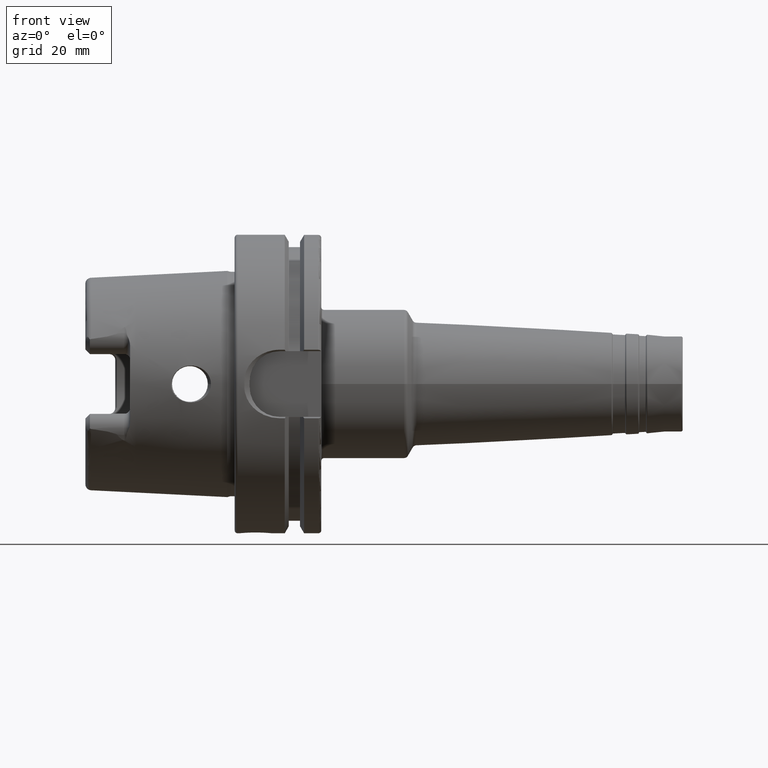
[diagram: clean part render]
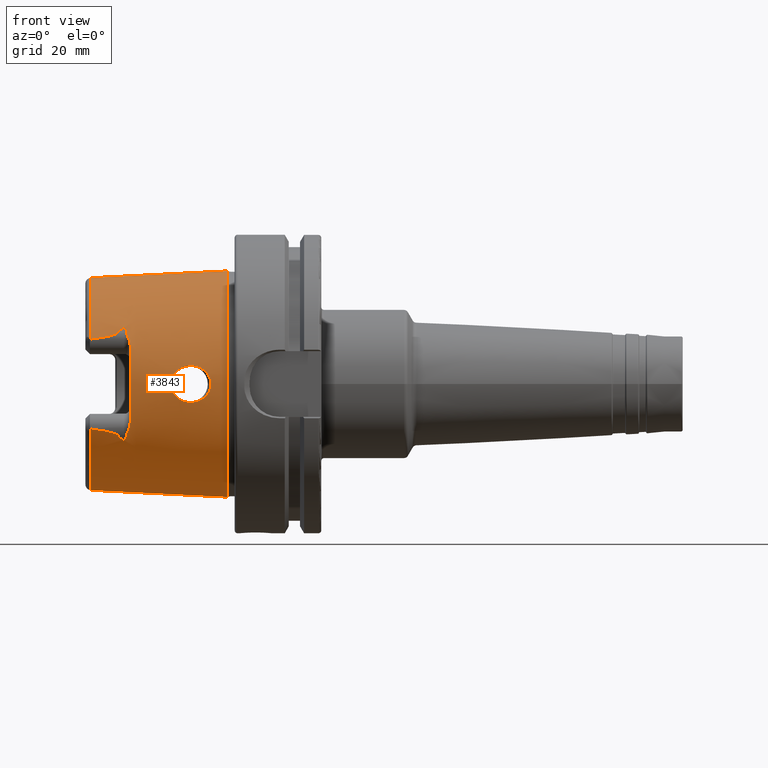
[diagram: same view with one face highlighted and labeled with its STEP entity id]
A machine part, front view. The second image highlights one B-rep face of the part: STEP entity #3843.
In plain terms, the highlighted conical surface has half-angle 2.868 deg.
Its self-contained STEP definition (entity closure, byte-faithful):
#563=CARTESIAN_POINT('',(-1.893703631359E0,0.E0,0.E0));
#564=DIRECTION('',(-1.E0,0.E0,0.E0));
#565=DIRECTION('',(0.E0,0.E0,-1.E0));
#566=AXIS2_PLACEMENT_3D('',#563,#564,#565);
#568=CARTESIAN_POINT('',(-1.893703631359E0,-1.269565425091E0,
-5.929989467927E-1));
#569=CARTESIAN_POINT('',(-1.880842745225E0,-1.269507281475E0,
-5.946459169201E-1));
#570=CARTESIAN_POINT('',(-1.856152808006E0,-1.269350028431E0,
-5.978937214253E-1));
#571=CARTESIAN_POINT('',(-1.822333598122E0,-1.269005478724E0,
-6.025849445480E-1));
#572=CARTESIAN_POINT('',(-1.791357704271E0,-1.268562422246E0,
-6.071203566744E-1));
#573=CARTESIAN_POINT('',(-1.763041748018E0,-1.268030942239E0,
-6.115023616335E-1));
#574=CARTESIAN_POINT('',(-1.737128254918E0,-1.267417978007E0,
-6.157482500839E-1));
#575=CARTESIAN_POINT('',(-1.713636981194E0,-1.266737262270E0,
-6.198295919257E-1));
#576=CARTESIAN_POINT('',(-1.691917761567E0,-1.265981073834E0,
-6.238382578979E-1));
#577=CARTESIAN_POINT('',(-1.671691908873E0,-1.265141219621E0,
-6.278224821604E-1));
#578=CARTESIAN_POINT('',(-1.653396345127E0,-1.264242140980E0,
-6.316841743662E-1));
#579=CARTESIAN_POINT('',(-1.636815111755E0,-1.263284552190E0,
-6.354476568252E-1));
#580=CARTESIAN_POINT('',(-1.621729767126E0,-1.262266064666E0,
-6.391433595558E-1));
#581=CARTESIAN_POINT('',(-1.607391234513E0,-1.261126041844E0,
-6.429730893223E-1));
#582=CARTESIAN_POINT('',(-1.594610103997E0,-1.259919566836E0,
-6.467373553427E-1));
#583=CARTESIAN_POINT('',(-1.583066782321E0,-1.258618337019E0,
-6.505266087614E-1));
#584=CARTESIAN_POINT('',(-1.572785980931E0,-1.257217673715E0,
-6.543462750870E-1));
#585=CARTESIAN_POINT('',(-1.563244139271E0,-1.255600343644E0,
-6.584751191454E-1));
#586=CARTESIAN_POINT('',(-1.554898956450E0,-1.253746824072E0,
-6.628934691931E-1));
#587=CARTESIAN_POINT('',(-1.547980131168E0,-1.251545910438E0,
-6.677777568287E-1));
#588=CARTESIAN_POINT('',(-1.544771429549E0,-1.249771031909E0,
-6.714292805776E-1));
#589=CARTESIAN_POINT('',(-1.543717736798E0,-1.248744560553E0,
-6.734438440444E-1));
#591=CARTESIAN_POINT('',(-1.543717736798E0,-1.248744560553E0,
-6.734438440444E-1));
#592=CARTESIAN_POINT('',(-1.540223605096E0,-1.245340697233E0,
-6.801243019542E-1));
#593=CARTESIAN_POINT('',(-1.531071187287E0,-1.238707383205E0,
-6.931429137533E-1));
#594=CARTESIAN_POINT('',(-1.511289858449E0,-1.229049250987E0,
-7.120980655068E-1));
#595=CARTESIAN_POINT('',(-1.486558801566E0,-1.219858638449E0,
-7.301356582255E-1));
#596=CARTESIAN_POINT('',(-1.467131752005E0,-1.213967895267E0,
-7.416968926800E-1));
#597=CARTESIAN_POINT('',(-1.456692913386E0,-1.211058486285E0,
-7.474069293135E-1));
#599=CARTESIAN_POINT('',(-1.456692913386E0,-1.211058486285E0,
7.474069293135E-1));
#600=CARTESIAN_POINT('',(-1.467133766522E0,-1.213968456733E0,
7.416957907411E-1));
#601=CARTESIAN_POINT('',(-1.486562803422E0,-1.219859894061E0,
7.301331939492E-1));
#602=CARTESIAN_POINT('',(-1.511292211461E0,-1.229050500295E0,
7.120956136030E-1));
#603=CARTESIAN_POINT('',(-1.531065870640E0,-1.238704557315E0,
6.931484598735E-1));
#604=CARTESIAN_POINT('',(-1.540222098315E0,-1.245339229378E0,
6.801271827818E-1));
#605=CARTESIAN_POINT('',(-1.543717736798E0,-1.248744560553E0,
6.734438440444E-1));
#607=CARTESIAN_POINT('',(-1.893703631359E0,-1.269565425091E0,
5.929989467927E-1));
#608=CARTESIAN_POINT('',(-1.880842745225E0,-1.269507281475E0,
5.946459169201E-1));
#609=CARTESIAN_POINT('',(-1.856152808006E0,-1.269350028431E0,
5.978937214253E-1));
#610=CARTESIAN_POINT('',(-1.822333598122E0,-1.269005478724E0,
6.025849445480E-1));
#611=CARTESIAN_POINT('',(-1.791357704271E0,-1.268562422246E0,
6.071203566744E-1));
#612=CARTESIAN_POINT('',(-1.763041748018E0,-1.268030942239E0,
6.115023616335E-1));
#613=CARTESIAN_POINT('',(-1.737128254918E0,-1.267417978007E0,
6.157482500839E-1));
#614=CARTESIAN_POINT('',(-1.713636981194E0,-1.266737262270E0,
6.198295919257E-1));
#615=CARTESIAN_POINT('',(-1.691917761567E0,-1.265981073834E0,
6.238382578979E-1));
#616=CARTESIAN_POINT('',(-1.671691908873E0,-1.265141219621E0,
6.278224821604E-1));
#617=CARTESIAN_POINT('',(-1.653396345127E0,-1.264242140980E0,
6.316841743661E-1));
#618=CARTESIAN_POINT('',(-1.636815111755E0,-1.263284552190E0,
6.354476568252E-1));
#619=CARTESIAN_POINT('',(-1.621729767126E0,-1.262266064666E0,
6.391433595558E-1));
#620=CARTESIAN_POINT('',(-1.607391234513E0,-1.261126041844E0,
6.429730893223E-1));
#621=CARTESIAN_POINT('',(-1.594610103997E0,-1.259919566836E0,
6.467373553427E-1));
#622=CARTESIAN_POINT('',(-1.583066782321E0,-1.258618337019E0,
6.505266087614E-1));
#623=CARTESIAN_POINT('',(-1.572785980931E0,-1.257217673715E0,
6.543462750870E-1));
#624=CARTESIAN_POINT('',(-1.563244139271E0,-1.255600343644E0,
6.584751191454E-1));
#625=CARTESIAN_POINT('',(-1.554898956450E0,-1.253746824072E0,
6.628934691931E-1));
#626=CARTESIAN_POINT('',(-1.547980131168E0,-1.251545910438E0,
6.677777568287E-1));
#627=CARTESIAN_POINT('',(-1.544771429549E0,-1.249771031909E0,
6.714292805777E-1));
#628=CARTESIAN_POINT('',(-1.543717736798E0,-1.248744560553E0,
6.734438440444E-1));
#630=CARTESIAN_POINT('',(-1.893703631359E0,0.E0,0.E0));
#631=DIRECTION('',(-1.E0,0.E0,0.E0));
#632=DIRECTION('',(0.E0,-9.060367502718E-1,4.231990160161E-1));
#633=AXIS2_PLACEMENT_3D('',#630,#631,#632);
#635=DIRECTION('',(-9.987493463681E-1,-1.021020391236E-10,-4.999743122625E-2));
#636=VECTOR('',#635,1.797523029311E0);
#637=CARTESIAN_POINT('',(-9.842868075308E-2,1.833079246693E-10,
1.491101036824E0));
#638=LINE('',#637,#636);
#639=CARTESIAN_POINT('',(-9.842868075308E-2,-1.833076623798E-10,
-1.491101036824E0));
#640=CARTESIAN_POINT('',(-9.842867891766E-2,-7.435984661004E-2,
-1.491101036916E0));
#641=CARTESIAN_POINT('',(-9.906543530853E-2,-2.230740001245E-1,
-1.480026445825E0));
#642=CARTESIAN_POINT('',(-9.880950776748E-2,-4.411665630535E-1,
-1.430220253021E0));
#643=CARTESIAN_POINT('',(-9.887808334538E-2,-6.494030020027E-1,
-1.348500930628E0));
#644=CARTESIAN_POINT('',(-9.885970857483E-2,-8.431331716230E-1,
-1.236648778696E0));
#645=CARTESIAN_POINT('',(-9.886463207913E-2,-1.018029052116E0,
-1.097174495586E0));
#646=CARTESIAN_POINT('',(-9.886331283247E-2,-1.170183869109E0,
-9.331904621137E-1));
#647=CARTESIAN_POINT('',(-9.886366631483E-2,-1.296198706489E0,
-7.483606790954E-1));
#648=CARTESIAN_POINT('',(-9.886357163205E-2,-1.393258608502E0,
-5.468137056757E-1));
#649=CARTESIAN_POINT('',(-9.886359688079E-2,-1.459195414972E0,
-3.330518312804E-1));
#650=CARTESIAN_POINT('',(-9.886359056861E-2,-1.492536207401E0,
-1.118501257205E-1));
#651=CARTESIAN_POINT('',(-9.886359056861E-2,-1.492536207412E0,
1.118501255728E-1));
#652=CARTESIAN_POINT('',(-9.886359688079E-2,-1.459195415005E0,
3.330518311366E-1));
#653=CARTESIAN_POINT('',(-9.886357163205E-2,-1.393258608556E0,
5.468137055372E-1));
#654=CARTESIAN_POINT('',(-9.886366631484E-2,-1.296198706564E0,
7.483606789658E-1));
#655=CARTESIAN_POINT('',(-9.886331283240E-2,-1.170183869202E0,
9.331904619981E-1));
#656=CARTESIAN_POINT('',(-9.886463207941E-2,-1.018029052218E0,
1.097174495490E0));
#657=CARTESIAN_POINT('',(-9.885970857380E-2,-8.431331717537E-1,
1.236648778606E0));
#658=CARTESIAN_POINT('',(-9.887808334921E-2,-6.494030021276E-1,
1.348500930572E0));
#659=CARTESIAN_POINT('',(-9.880950775318E-2,-4.411665632053E-1,
1.430220252961E0));
#660=CARTESIAN_POINT('',(-9.906543536189E-2,-2.230740003706E-1,
1.480026445818E0));
#661=CARTESIAN_POINT('',(-9.842867880268E-2,-7.435984627187E-2,
1.491101036922E0));
#662=CARTESIAN_POINT('',(-9.842868075308E-2,1.833079246693E-10,
1.491101036824E0));
#664=DIRECTION('',(-9.987493463681E-1,1.021030404979E-10,4.999743122625E-2));
#665=VECTOR('',#664,1.797523029311E0);
#666=CARTESIAN_POINT('',(-9.842868075308E-2,-1.833076623798E-10,
-1.491101036824E0));
#667=LINE('',#666,#665);
#668=CARTESIAN_POINT('',(-3.128946030769E-1,-1.480426251414E0,0.E0));
#669=CARTESIAN_POINT('',(-3.128946030769E-1,-1.480426251414E0,
-1.793355269297E-2));
#670=CARTESIAN_POINT('',(-3.171521727647E-1,-1.479567657654E0,
-5.228421557719E-2));
#671=CARTESIAN_POINT('',(-3.343803252517E-1,-1.476207557354E0,
-9.977767551936E-2));
#672=CARTESIAN_POINT('',(-3.603203566783E-1,-1.471450549823E0,
-1.413401699306E-1));
#673=CARTESIAN_POINT('',(-3.945084407381E-1,-1.465741866156E0,
-1.776228749722E-1));
#674=CARTESIAN_POINT('',(-4.358227646297E-1,-1.459706203287E0,
-2.072529867113E-1));
#675=CARTESIAN_POINT('',(-4.831466632845E-1,-1.454003661986E0,
-2.290298674016E-1));
#676=CARTESIAN_POINT('',(-5.320900109301E-1,-1.449485136456E0,
-2.414117426801E-1));
#677=CARTESIAN_POINT('',(-5.820499904265E-1,-1.446320063876E0,
-2.450975261997E-1));
#678=CARTESIAN_POINT('',(-6.317032386393E-1,-1.444647052136E0,
-2.400922505621E-1));
#679=CARTESIAN_POINT('',(-6.801464475551E-1,-1.444438048215E0,
-2.263329803044E-1));
#680=CARTESIAN_POINT('',(-7.255118082618E-1,-1.445527533900E0,
-2.038769381679E-1));
#681=CARTESIAN_POINT('',(-7.655218420232E-1,-1.447517935838E0,
-1.735118792315E-1));
#682=CARTESIAN_POINT('',(-7.981472907721E-1,-1.449846751428E0,
-1.368585160245E-1));
#683=CARTESIAN_POINT('',(-8.225663574576E-1,-1.451998367136E0,
-9.519400604822E-2));
#684=CARTESIAN_POINT('',(-8.380630020108E-1,-1.453545646359E0,
-4.908882972230E-2));
#685=CARTESIAN_POINT('',(-8.417144799839E-1,-1.453932972270E0,
-1.671057230190E-2));
#686=CARTESIAN_POINT('',(-8.417144799839E-1,-1.453932972270E0,0.E0));
#688=CARTESIAN_POINT('',(-8.417144799839E-1,-1.453932972270E0,0.E0));
#689=CARTESIAN_POINT('',(-8.417144799839E-1,-1.453932972270E0,
1.678651392874E-2));
#690=CARTESIAN_POINT('',(-8.380301592165E-1,-1.453542138065E0,
4.929051042080E-2));
#691=CARTESIAN_POINT('',(-8.224292024418E-1,-1.451985055815E0,
9.551334382738E-2));
#692=CARTESIAN_POINT('',(-7.978966975531E-1,-1.449826430876E0,
1.372034065275E-1));
#693=CARTESIAN_POINT('',(-7.652254080693E-1,-1.447499846288E0,
1.737817904060E-1));
#694=CARTESIAN_POINT('',(-7.251857136219E-1,-1.445515491719E0,
2.040764502318E-1));
#695=CARTESIAN_POINT('',(-6.797946022481E-1,-1.444434031646E0,
2.264709929686E-1));
#696=CARTESIAN_POINT('',(-6.312563978015E-1,-1.444654924821E0,
2.401805803585E-1));
#697=CARTESIAN_POINT('',(-5.815860811536E-1,-1.446342946534E0,
2.451015411723E-1));
#698=CARTESIAN_POINT('',(-5.316937655645E-1,-1.449517078029E0,
2.413415655311E-1));
#699=CARTESIAN_POINT('',(-4.828661894707E-1,-1.454034377049E0,
2.289254263025E-1));
#700=CARTESIAN_POINT('',(-4.355782183882E-1,-1.459738474895E0,
2.071162265290E-1));
#701=CARTESIAN_POINT('',(-3.941909689315E-1,-1.465791122885E0,
1.773574057007E-1));
#702=CARTESIAN_POINT('',(-3.600115112815E-1,-1.471504941797E0,
1.409459057545E-1));
#703=CARTESIAN_POINT('',(-3.341690471763E-1,-1.476248008108E0,
9.932836915106E-2));
#704=CARTESIAN_POINT('',(-3.170995627949E-1,-1.479578350415E0,
5.198573248221E-2));
#705=CARTESIAN_POINT('',(-3.128946030769E-1,-1.480426251414E0,
1.781732352592E-2));
#706=CARTESIAN_POINT('',(-3.128946030769E-1,-1.480426251414E0,0.E0));
#900=CARTESIAN_POINT('',(-1.456692913386E0,-1.211058486285E0,
7.474069293135E-1));
#901=CARTESIAN_POINT('',(-1.455238337545E0,-1.210653081415E0,
7.482025811710E-1));
#902=CARTESIAN_POINT('',(-1.452352583608E0,-1.210376329549E0,
7.489242788756E-1));
#903=CARTESIAN_POINT('',(-1.448317570632E0,-1.211413243652E0,
7.476324535017E-1));
#904=CARTESIAN_POINT('',(-1.445170009108E0,-1.213207113352E0,
7.450207292978E-1));
#905=CARTESIAN_POINT('',(-1.442634124228E0,-1.215288348757E0,
7.418656008193E-1));
#906=CARTESIAN_POINT('',(-1.440434430390E0,-1.217616469979E0,
7.382519492797E-1));
#907=CARTESIAN_POINT('',(-1.438406805633E0,-1.220251279488E0,
7.340873028443E-1));
#908=CARTESIAN_POINT('',(-1.436489607266E0,-1.223246204226E0,
7.292754335862E-1));
#909=CARTESIAN_POINT('',(-1.434661116555E0,-1.226647677667E0,
7.237224087632E-1));
#910=CARTESIAN_POINT('',(-1.432937515898E0,-1.230459531193E0,
7.173968216570E-1));
#911=CARTESIAN_POINT('',(-1.431341897748E0,-1.234666243581E0,
7.102962956893E-1));
#912=CARTESIAN_POINT('',(-1.429897788995E0,-1.239253628934E0,
7.024120006014E-1));
#913=CARTESIAN_POINT('',(-1.428658939679E0,-1.244070809412E0,
6.939741895930E-1));
#914=CARTESIAN_POINT('',(-1.427642779738E0,-1.249022911115E0,
6.851283329257E-1));
#915=CARTESIAN_POINT('',(-1.427123768653E0,-1.252311570391E0,
6.791362187333E-1));
#916=CARTESIAN_POINT('',(-1.426899874699E0,-1.253960541512E0,
6.761015190875E-1));
#928=CARTESIAN_POINT('',(-1.426899874699E0,-1.253960541512E0,
6.761015190875E-1));
#929=CARTESIAN_POINT('',(-1.426453380585E0,-1.257248955004E0,
6.700496561240E-1));
#930=CARTESIAN_POINT('',(-1.423752320487E0,-1.263956337886E0,
6.576816398833E-1));
#931=CARTESIAN_POINT('',(-1.416255166269E0,-1.274194072720E0,
6.384745689381E-1));
#932=CARTESIAN_POINT('',(-1.406965615960E0,-1.285070483452E0,
6.173928222922E-1));
#933=CARTESIAN_POINT('',(-1.397256580260E0,-1.296437402203E0,
5.943504080234E-1));
#934=CARTESIAN_POINT('',(-1.387976139665E0,-1.308560561086E0,5.684020404E-1));
#935=CARTESIAN_POINT('',(-1.380279496516E0,-1.321909031742E0,
5.377337604566E-1));
#936=CARTESIAN_POINT('',(-1.377952755906E0,-1.330900057113E0,
5.151610185964E-1));
#937=CARTESIAN_POINT('',(-1.377952755906E0,-1.335397259534E0,
5.032269360625E-1));
#953=CARTESIAN_POINT('',(-1.377952755906E0,0.E0,0.E0));
#954=DIRECTION('',(1.E0,0.E0,0.E0));
#955=DIRECTION('',(0.E0,-9.357628524911E-1,3.526299532055E-1));
#956=AXIS2_PLACEMENT_3D('',#953,#954,#955);
#1034=CARTESIAN_POINT('',(-1.377952755906E0,-1.335397259534E0,
-5.032269360625E-1));
#1035=CARTESIAN_POINT('',(-1.377952755906E0,-1.330904109616E0,
-5.151502645977E-1));
#1036=CARTESIAN_POINT('',(-1.380280891988E0,-1.321941884780E0,
-5.376443966210E-1));
#1037=CARTESIAN_POINT('',(-1.387816605720E0,-1.308812658899E0,
-5.678331103960E-1));
#1038=CARTESIAN_POINT('',(-1.396945941854E0,-1.296818318441E0,
-5.935539020596E-1));
#1039=CARTESIAN_POINT('',(-1.406580482562E0,-1.285512279309E0,
-6.165175882242E-1));
#1040=CARTESIAN_POINT('',(-1.415960454685E0,-1.274557485131E0,
-6.377854960501E-1));
#1041=CARTESIAN_POINT('',(-1.423645414950E0,-1.264160517235E0,
-6.573048439630E-1));
#1042=CARTESIAN_POINT('',(-1.426443318473E0,-1.257323062104E0,
-6.699132724208E-1));
#1043=CARTESIAN_POINT('',(-1.426899874699E0,-1.253960541512E0,
-6.761015190875E-1));
#1050=CARTESIAN_POINT('',(-1.426899874699E0,-1.253960541512E0,
-6.761015190875E-1));
#1051=CARTESIAN_POINT('',(-1.427138655064E0,-1.252201932499E0,
-6.793379918671E-1));
#1052=CARTESIAN_POINT('',(-1.427682671949E0,-1.248810127746E0,
-6.855110708649E-1));
#1053=CARTESIAN_POINT('',(-1.428649481666E0,-1.244142714712E0,
-6.938421747514E-1));
#1054=CARTESIAN_POINT('',(-1.429743291445E0,-1.239840679208E0,
-7.013860940269E-1));
#1055=CARTESIAN_POINT('',(-1.430950533304E0,-1.235864591438E0,
-7.082442023707E-1));
#1056=CARTESIAN_POINT('',(-1.432262357456E0,-1.232180229722E0,
-7.145021957001E-1));
#1057=CARTESIAN_POINT('',(-1.433730142960E0,-1.228645381760E0,
-7.204171044621E-1));
#1058=CARTESIAN_POINT('',(-1.435341867678E0,-1.225326515990E0,
-7.258876117009E-1));
#1059=CARTESIAN_POINT('',(-1.437081826486E0,-1.222272805376E0,
-7.308464262800E-1));
#1060=CARTESIAN_POINT('',(-1.438949322676E0,-1.219500807835E0,
-7.352799433103E-1));
#1061=CARTESIAN_POINT('',(-1.440975938847E0,-1.216997025610E0,
-7.392199856867E-1));
#1062=CARTESIAN_POINT('',(-1.443215630343E0,-1.214758996292E0,
-7.426759006674E-1));
#1063=CARTESIAN_POINT('',(-1.445820426895E0,-1.212773249111E0,
-7.456642570957E-1));
#1064=CARTESIAN_POINT('',(-1.449076225649E0,-1.211115432710E0,
-7.480419755746E-1));
#1065=CARTESIAN_POINT('',(-1.453076925427E0,-1.210383235765E0,
-7.488441663023E-1));
#1066=CARTESIAN_POINT('',(-1.455477545098E0,-1.210719750958E0,
-7.480717348249E-1));
#1067=CARTESIAN_POINT('',(-1.456692913386E0,-1.211058486285E0,
-7.474069293135E-1));
#2866=VERTEX_POINT('',#639);
#2867=VERTEX_POINT('',#662);
#2967=CARTESIAN_POINT('',(-1.377952755906E0,-1.335397259534E0,
-5.032269360625E-1));
#2969=VERTEX_POINT('',#2967);
#2970=CARTESIAN_POINT('',(-1.456692913386E0,-1.211058486285E0,
-7.474069293135E-1));
#2971=VERTEX_POINT('',#2970);
#2973=CARTESIAN_POINT('',(-1.377952755906E0,-1.335397259534E0,
5.032269360625E-1));
#2975=VERTEX_POINT('',#2973);
#2980=CARTESIAN_POINT('',(-1.456692913386E0,-1.211058486285E0,
7.474069293135E-1));
#2981=VERTEX_POINT('',#2980);
#2982=VERTEX_POINT('',#591);
#2983=CARTESIAN_POINT('',(-1.543717736798E0,-1.248744560553E0,
6.734438440444E-1));
#2984=VERTEX_POINT('',#2983);
#2985=VERTEX_POINT('',#916);
#2986=VERTEX_POINT('',#1050);
#3035=CARTESIAN_POINT('',(-1.893703631359E0,0.E0,-1.401229502788E0));
#3036=CARTESIAN_POINT('',(-1.893703631359E0,-1.269565425091E0,
-5.929989467927E-1));
#3037=VERTEX_POINT('',#3035);
#3038=VERTEX_POINT('',#3036);
#3041=CARTESIAN_POINT('',(-1.893703631359E0,0.E0,1.401229502788E0));
#3043=VERTEX_POINT('',#3041);
#3045=CARTESIAN_POINT('',(-1.893703631359E0,-1.269565425091E0,
5.929989467927E-1));
#3046=VERTEX_POINT('',#3045);
#3126=CARTESIAN_POINT('',(-3.128946030769E-1,-1.480426251414E0,0.E0));
#3128=VERTEX_POINT('',#3126);
#3130=CARTESIAN_POINT('',(-8.417144799839E-1,-1.453932972270E0,0.E0));
#3132=VERTEX_POINT('',#3130);
#3807=CARTESIAN_POINT('',(-9.960678980185E-1,0.E0,0.E0));
#3808=DIRECTION('',(1.E0,0.E0,0.E0));
#3809=DIRECTION('',(0.E0,0.E0,1.E0));
#3810=AXIS2_PLACEMENT_3D('',#3807,#3808,#3809);
#3811=CONICAL_SURFACE('',#3810,1.446200040189E0,2.868056E0);
#3812=ORIENTED_EDGE('',*,*,#3390,.T.);
#3814=ORIENTED_EDGE('',*,*,#3813,.T.);
#3816=ORIENTED_EDGE('',*,*,#3815,.T.);
#3818=ORIENTED_EDGE('',*,*,#3817,.F.);
#3820=ORIENTED_EDGE('',*,*,#3819,.F.);
#3822=ORIENTED_EDGE('',*,*,#3821,.F.);
#3824=ORIENTED_EDGE('',*,*,#3823,.F.);
#3826=ORIENTED_EDGE('',*,*,#3825,.F.);
#3828=ORIENTED_EDGE('',*,*,#3827,.T.);
#3830=ORIENTED_EDGE('',*,*,#3829,.F.);
#3832=ORIENTED_EDGE('',*,*,#3831,.T.);
#3833=ORIENTED_EDGE('',*,*,#3354,.F.);
#3835=ORIENTED_EDGE('',*,*,#3834,.F.);
#3836=ORIENTED_EDGE('',*,*,#3350,.T.);
#3837=EDGE_LOOP('',(#3812,#3814,#3816,#3818,#3820,#3822,#3824,#3826,#3828,#3830,
#3832,#3833,#3835,#3836));
#3838=FACE_OUTER_BOUND('',#3837,.F.);
#3839=ORIENTED_EDGE('',*,*,#3800,.F.);
#3840=ORIENTED_EDGE('',*,*,#3789,.F.);
#3841=EDGE_LOOP('',(#3839,#3840));
#3842=FACE_BOUND('',#3841,.F.);
#3843=ADVANCED_FACE('',(#3838,#3842),#3811,.T.);
#567=CIRCLE('',#566,1.401229502788E0);
#590=B_SPLINE_CURVE_WITH_KNOTS('',3,(#568,#569,#570,#571,#572,#573,#574,#575,
#576,#577,#578,#579,#580,#581,#582,#583,#584,#585,#586,#587,#588,#589),
.UNSPECIFIED.,.F.,.F.,(4,1,1,1,1,1,1,1,1,1,1,1,1,1,1,1,1,1,1,4),(0.E0,
5.263157894737E-2,1.052631578947E-1,1.578947368421E-1,2.105263157895E-1,
2.631578947368E-1,3.157894736842E-1,3.684210526316E-1,4.210526315789E-1,
4.736842105263E-1,5.263157894737E-1,5.789473684211E-1,6.315789473684E-1,
6.842105263158E-1,7.368421052632E-1,7.894736842105E-1,8.421052631579E-1,
8.947368421053E-1,9.473684210526E-1,1.E0),.UNSPECIFIED.);
#598=B_SPLINE_CURVE_WITH_KNOTS('',3,(#591,#592,#593,#594,#595,#596,#597),
.UNSPECIFIED.,.F.,.F.,(4,1,1,1,4),(0.E0,2.5E-1,5.E-1,7.5E-1,1.E0),
.UNSPECIFIED.);
#606=B_SPLINE_CURVE_WITH_KNOTS('',3,(#599,#600,#601,#602,#603,#604,#605),
.UNSPECIFIED.,.F.,.F.,(4,1,1,1,4),(0.E0,2.5E-1,5.E-1,7.5E-1,1.E0),
.UNSPECIFIED.);
#629=B_SPLINE_CURVE_WITH_KNOTS('',3,(#607,#608,#609,#610,#611,#612,#613,#614,
#615,#616,#617,#618,#619,#620,#621,#622,#623,#624,#625,#626,#627,#628),
.UNSPECIFIED.,.F.,.F.,(4,1,1,1,1,1,1,1,1,1,1,1,1,1,1,1,1,1,1,4),(0.E0,
5.263157894737E-2,1.052631578947E-1,1.578947368421E-1,2.105263157895E-1,
2.631578947368E-1,3.157894736842E-1,3.684210526316E-1,4.210526315789E-1,
4.736842105263E-1,5.263157894737E-1,5.789473684211E-1,6.315789473684E-1,
6.842105263158E-1,7.368421052632E-1,7.894736842105E-1,8.421052631579E-1,
8.947368421053E-1,9.473684210526E-1,1.E0),.UNSPECIFIED.);
#634=CIRCLE('',#633,1.401229502788E0);
#663=B_SPLINE_CURVE_WITH_KNOTS('',3,(#639,#640,#641,#642,#643,#644,#645,#646,
#647,#648,#649,#650,#651,#652,#653,#654,#655,#656,#657,#658,#659,#660,#661,
#662),.UNSPECIFIED.,.F.,.F.,(4,1,1,1,1,1,1,1,1,1,1,1,1,1,1,1,1,1,1,1,1,4),(0.E0,
4.761904761905E-2,9.523809523810E-2,1.428571428571E-1,1.904761904762E-1,
2.380952380952E-1,2.857142857143E-1,3.333333333333E-1,3.809523809524E-1,
4.285714285714E-1,4.761904761905E-1,5.238095238095E-1,5.714285714286E-1,
6.190476190476E-1,6.666666666667E-1,7.142857142857E-1,7.619047619048E-1,
8.095238095238E-1,8.571428571429E-1,9.047619047619E-1,9.523809523810E-1,1.E0),
.UNSPECIFIED.);
#687=B_SPLINE_CURVE_WITH_KNOTS('',3,(#668,#669,#670,#671,#672,#673,#674,#675,
#676,#677,#678,#679,#680,#681,#682,#683,#684,#685,#686),.UNSPECIFIED.,.F.,.F.,
(4,1,1,1,1,1,1,1,1,1,1,1,1,1,1,1,4),(0.E0,6.25E-2,1.25E-1,1.875E-1,2.5E-1,
3.125E-1,3.75E-1,4.375E-1,5.E-1,5.625E-1,6.25E-1,6.875E-1,7.5E-1,8.125E-1,
8.75E-1,9.375E-1,1.E0),.UNSPECIFIED.);
#707=B_SPLINE_CURVE_WITH_KNOTS('',3,(#688,#689,#690,#691,#692,#693,#694,#695,
#696,#697,#698,#699,#700,#701,#702,#703,#704,#705,#706),.UNSPECIFIED.,.F.,.F.,
(4,1,1,1,1,1,1,1,1,1,1,1,1,1,1,1,4),(0.E0,6.25E-2,1.25E-1,1.875E-1,2.5E-1,
3.125E-1,3.75E-1,4.375E-1,5.E-1,5.625E-1,6.25E-1,6.875E-1,7.5E-1,8.125E-1,
8.75E-1,9.375E-1,1.E0),.UNSPECIFIED.);
#917=B_SPLINE_CURVE_WITH_KNOTS('',3,(#900,#901,#902,#903,#904,#905,#906,#907,
#908,#909,#910,#911,#912,#913,#914,#915,#916),.UNSPECIFIED.,.F.,.F.,(4,1,1,1,1,
1,1,1,1,1,1,1,1,1,4),(0.E0,7.142857142857E-2,1.428571428571E-1,
2.142857142857E-1,2.857142857143E-1,3.571428571429E-1,4.285714285714E-1,5.E-1,
5.714285714286E-1,6.428571428571E-1,7.142857142857E-1,7.857142857143E-1,
8.571428571429E-1,9.285714285714E-1,1.E0),.UNSPECIFIED.);
#938=B_SPLINE_CURVE_WITH_KNOTS('',3,(#928,#929,#930,#931,#932,#933,#934,#935,
#936,#937),.UNSPECIFIED.,.F.,.F.,(4,1,1,1,1,1,1,4),(0.E0,1.428571428571E-1,
2.857142857143E-1,4.285714285714E-1,5.714285714286E-1,7.142857142857E-1,
8.571428571429E-1,1.E0),.UNSPECIFIED.);
#957=CIRCLE('',#956,1.427068039706E0);
#1044=B_SPLINE_CURVE_WITH_KNOTS('',3,(#1034,#1035,#1036,#1037,#1038,#1039,#1040,
#1041,#1042,#1043),.UNSPECIFIED.,.F.,.F.,(4,1,1,1,1,1,1,4),(0.E0,
1.428571428571E-1,2.857142857143E-1,4.285714285714E-1,5.714285714286E-1,
7.142857142857E-1,8.571428571429E-1,1.E0),.UNSPECIFIED.);
#1068=B_SPLINE_CURVE_WITH_KNOTS('',3,(#1050,#1051,#1052,#1053,#1054,#1055,#1056,
#1057,#1058,#1059,#1060,#1061,#1062,#1063,#1064,#1065,#1066,#1067),
.UNSPECIFIED.,.F.,.F.,(4,1,1,1,1,1,1,1,1,1,1,1,1,1,1,4),(0.E0,6.666666666667E-2,
1.333333333333E-1,2.E-1,2.666666666667E-1,3.333333333333E-1,4.E-1,
4.666666666667E-1,5.333333333333E-1,6.E-1,6.666666666667E-1,7.333333333333E-1,
8.E-1,8.666666666667E-1,9.333333333333E-1,1.E0),.UNSPECIFIED.);
#3350=EDGE_CURVE('',#2866,#3037,#667,.T.);
#3354=EDGE_CURVE('',#2867,#3043,#638,.T.);
#3390=EDGE_CURVE('',#3037,#3038,#567,.T.);
#3789=EDGE_CURVE('',#3132,#3128,#707,.T.);
#3800=EDGE_CURVE('',#3128,#3132,#687,.T.);
#3813=EDGE_CURVE('',#3038,#2982,#590,.T.);
#3815=EDGE_CURVE('',#2982,#2971,#598,.T.);
#3817=EDGE_CURVE('',#2986,#2971,#1068,.T.);
#3819=EDGE_CURVE('',#2969,#2986,#1044,.T.);
#3821=EDGE_CURVE('',#2975,#2969,#957,.T.);
#3823=EDGE_CURVE('',#2985,#2975,#938,.T.);
#3825=EDGE_CURVE('',#2981,#2985,#917,.T.);
#3827=EDGE_CURVE('',#2981,#2984,#606,.T.);
#3829=EDGE_CURVE('',#3046,#2984,#629,.T.);
#3831=EDGE_CURVE('',#3046,#3043,#634,.T.);
#3834=EDGE_CURVE('',#2866,#2867,#663,.T.);